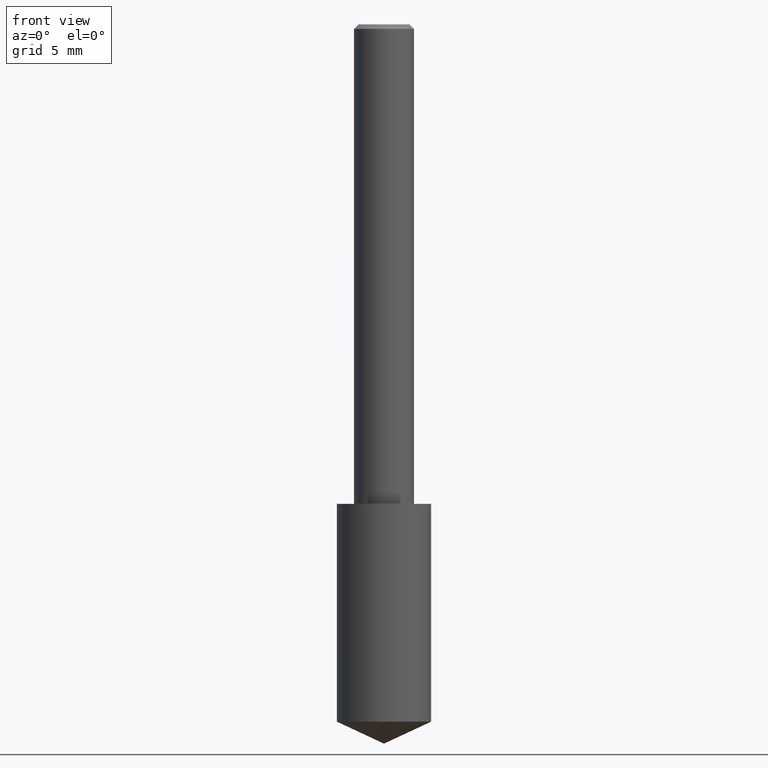
[diagram: clean part render]
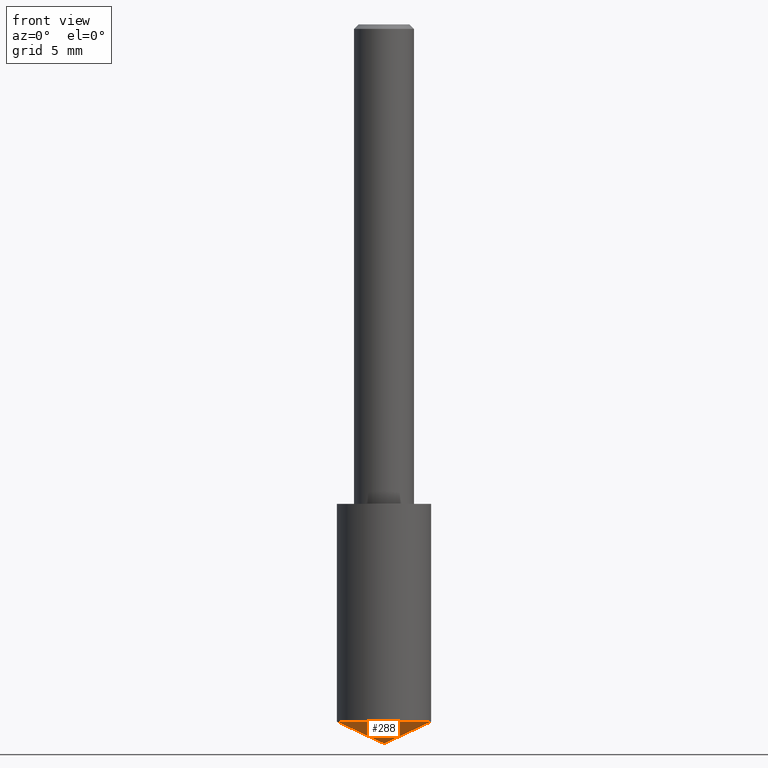
[diagram: same view with one face highlighted and labeled with its STEP entity id]
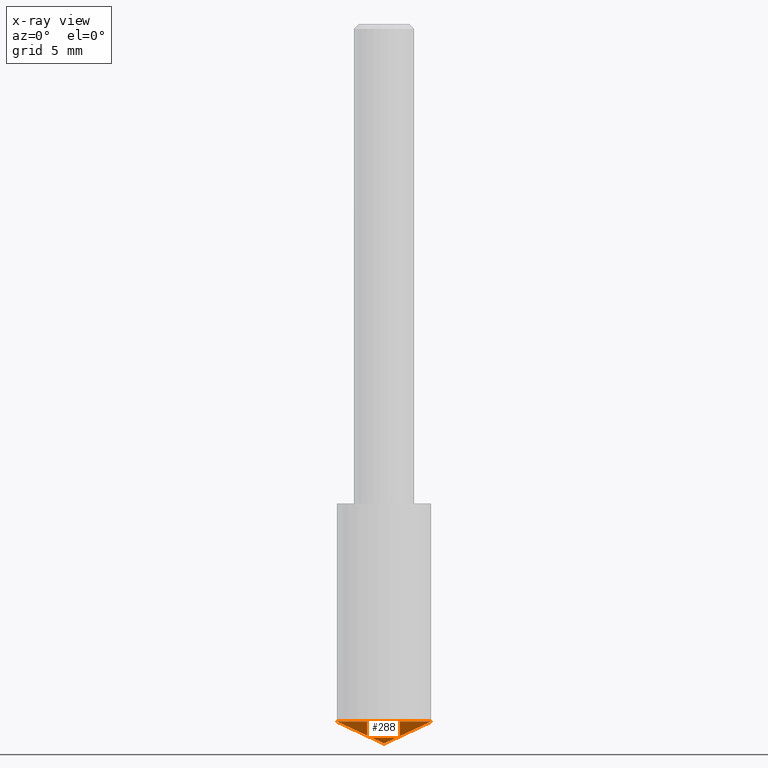
[diagram: x-ray of the same camera — body ghosted, the highlighted face saturated]
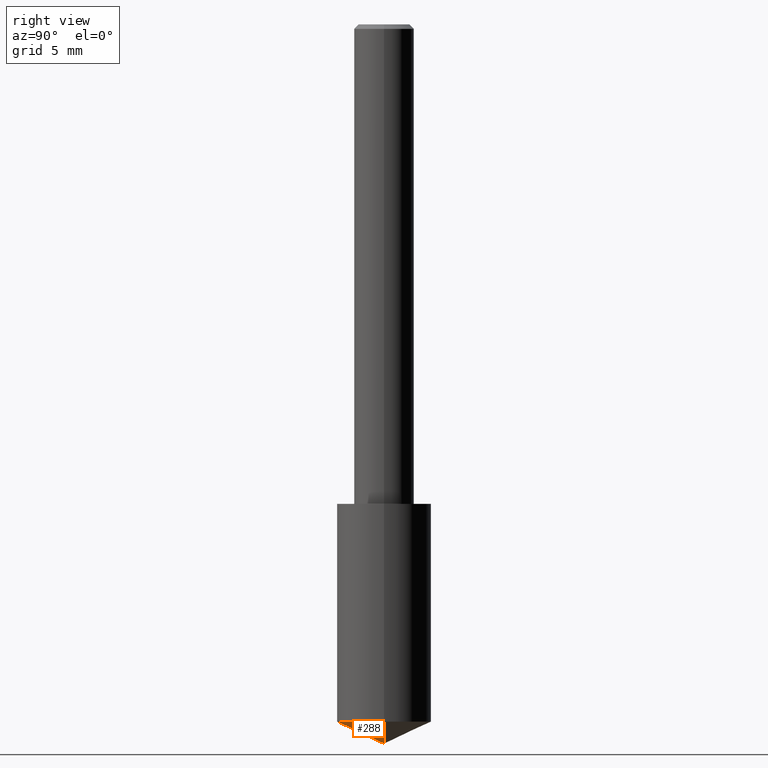
[diagram: same view with one face highlighted and labeled with its STEP entity id]
A machine part, front view. The second image highlights one B-rep face of the part: STEP entity #288.
The next image is the same camera in x-ray: the body ghosted, the highlighted face saturated — about 0% of this face is hidden behind the body in this view.
A second angle (right view) of the same face is appended — the face is thin or edge-on in the first view.
In plain terms, the highlighted conical surface has half-angle 65 deg.
Its self-contained STEP definition (entity closure, byte-faithful):
#7 = CARTESIAN_POINT ( 'NONE',  ( 3.668203209277704895E-29, -5.237222008264718177E-15, -1.500000000000000222 ) ) ;
#11 = CARTESIAN_POINT ( 'NONE',  ( 0.09840000000000000135, -5.764140054266837223E-15, -1.454115326437548150 ) ) ;
#17 = CARTESIAN_POINT ( 'NONE',  ( -9.261009624683002666E-28, 1.322226732217803884E-13, 37.87007874015748143 ) ) ;
#21 = CONICAL_SURFACE ( 'NONE', #276, 84.42940631927388040, 1.134464013796313786 ) ;
#38 = EDGE_CURVE ( 'NONE', #220, #192, #266, .T. ) ;
#44 = EDGE_LOOP ( 'NONE', ( #92, #336, #52 ) ) ;
#51 = DIRECTION ( 'NONE',  ( -0.9063077870366498257, 7.915267918739016209E-15, 0.4226182617406998299 ) ) ;
#52 = ORIENTED_EDGE ( 'NONE', *, *, #125, .F. ) ;
#57 = CARTESIAN_POINT ( 'NONE',  ( 3.668203209277704895E-29, -5.237222008264718177E-15, -1.500000000000000222 ) ) ;
#81 = AXIS2_PLACEMENT_3D ( 'NONE', #309, #163, #264 ) ;
#92 = ORIENTED_EDGE ( 'NONE', *, *, #104, .F. ) ;
#104 = EDGE_CURVE ( 'NONE', #220, #285, #108, .T. ) ;
#108 = LINE ( 'NONE', #7, #177 ) ;
#111 = CARTESIAN_POINT ( 'NONE',  ( 3.668203209277704895E-29, -5.237222008264718177E-15, -1.500000000000000222 ) ) ;
#125 = EDGE_CURVE ( 'NONE', #285, #192, #339, .T. ) ;
#129 = VECTOR ( 'NONE', #188, 39.37007874015748143 ) ;
#163 = DIRECTION ( 'NONE',  ( -2.445468806185136597E-29, 3.491481338843145583E-15, 1.000000000000000000 ) ) ;
#177 = VECTOR ( 'NONE', #51, 39.37007874015748143 ) ;
#188 = DIRECTION ( 'NONE',  ( 0.9063077870366498257, -4.853149677051377212E-15, 0.4226182617406998299 ) ) ;
#192 = VERTEX_POINT ( 'NONE', #11 ) ;
#220 = VERTEX_POINT ( 'NONE', #111 ) ;
#221 = DIRECTION ( 'NONE',  ( -2.445468806185136597E-29, 3.491481338843145583E-15, 1.000000000000000000 ) ) ;
#224 = DIRECTION ( 'NONE',  ( 1.000000000000000000, -6.982962677686265922E-15, 0.000000000000000000 ) ) ;
#256 = CARTESIAN_POINT ( 'NONE',  ( -0.09840000000000000135, -4.377842474794570075E-15, -1.454115326437548150 ) ) ;
#264 = DIRECTION ( 'NONE',  ( 1.000000000000000000, -6.982962677686271444E-15, 0.000000000000000000 ) ) ;
#266 = LINE ( 'NONE', #57, #129 ) ;
#275 = FACE_OUTER_BOUND ( 'NONE', #44, .T. ) ;
#276 = AXIS2_PLACEMENT_3D ( 'NONE', #17, #221, #224 ) ;
#285 = VERTEX_POINT ( 'NONE', #256 ) ;
#288 = ADVANCED_FACE ( 'NONE', ( #275 ), #21, .T. ) ;
#309 = CARTESIAN_POINT ( 'NONE',  ( 3.555993671398741299E-29, -5.077016526782508174E-15, -1.454115326437548150 ) ) ;
#336 = ORIENTED_EDGE ( 'NONE', *, *, #38, .T. ) ;
#339 = CIRCLE ( 'NONE', #81, 0.09840000000000000135 ) ;